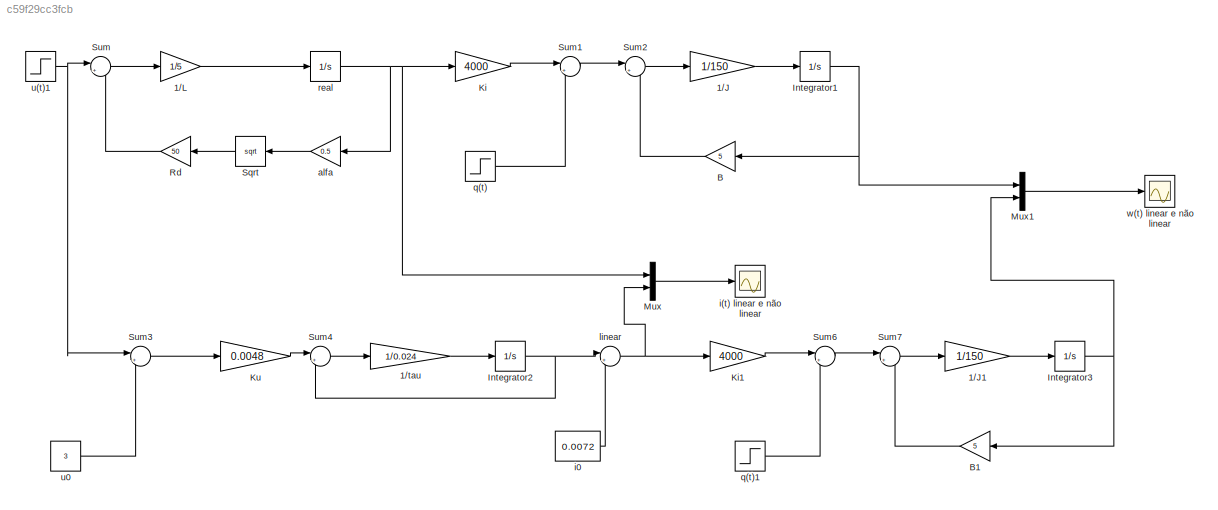
MODEL slx_c59f29cc3fcb
KIND model
CONFIG AbsTol = auto
CONFIG EnableMultiTasking = on
CONFIG FixedStep = auto
CONFIG MaxStep = auto
CONFIG MinStep = auto
CONFIG RelTol = 1e-3
CONFIG SampleTimeConstraint = Unconstrained
CONFIG SolverName = ode45
CONFIG StartTime = 0.0
CONFIG StopTime = 150
BLOCK [Gain] 1//J
  Gain = 1/150
BLOCK [Gain] 1//J1
  Gain = 1/150
BLOCK [Gain] 1//L
  Gain = 1/5
BLOCK [Gain] 1//tau
  Gain = 1/0.024
BLOCK [Gain] B
  Gain = 5
BLOCK [Gain] B1
  Gain = 5
BLOCK [Integrator] Integrator1
  Ports = [1, 1]
BLOCK [Integrator] Integrator2
  Ports = [1, 1]
BLOCK [Integrator] Integrator3
  Ports = [1, 1]
BLOCK [Gain] Ki
  Gain = 4000
BLOCK [Gain] Ki1
  Gain = 4000
BLOCK [Gain] Ku
  Gain = 0.0048
BLOCK [Mux] Mux
  DisplayOption = bar
  Inputs = 2
  Ports = [2, 1]
BLOCK [Mux] Mux1
  DisplayOption = bar
  Inputs = 2
  Ports = [2, 1]
BLOCK [Gain] Rd
  Gain = 50
BLOCK [Sqrt] Sqrt
BLOCK [Sum] Sum
  Inputs = |+-
  Ports = [2, 1]
BLOCK [Sum] Sum1
  Inputs = |++
  Ports = [2, 1]
BLOCK [Sum] Sum2
  Inputs = |+-
  Ports = [2, 1]
BLOCK [Sum] Sum3
  Inputs = |+-
  Ports = [2, 1]
BLOCK [Sum] Sum4
  Inputs = |+-
  Ports = [2, 1]
BLOCK [Sum] Sum6
  Inputs = |++
  Ports = [2, 1]
BLOCK [Sum] Sum7
  Inputs = |+-
  Ports = [2, 1]
BLOCK [Gain] alfa
  Gain = 0.5
BLOCK [Scope] i(t) linear e não linear
  Floating = off
  NumInputPorts = 1
  Ports = [1]
  ScopeSpecificationString = Simulink.scopes.TimeScopeBlockCfg('CurrentConfiguration', extmgr.ConfigurationSet(extmgr.Configuration('Core','General UI',true,'FigureColor',[1 1 1]),extmgr.Configuration('Core','Source UI',true),extmgr.Configuration('Sources','WiredSimulink',true,'DataLoggingVariableName','ScopeData2','DataLoggingSaveFormat','StructureWithTime','DataLoggingLimitDataPoints',true,'DataLoggingDecimation','1','DataL...<+3212ch>
BLOCK [Constant] i0
  Value = 0.0072
BLOCK [Sum] linear
  Inputs = |++
  Ports = [2, 1]
BLOCK [Step] q(t)
  After = 0
  SampleTime = 0
  Time = 50
BLOCK [Step] q(t)1
  SampleTime = 0
  Time = 50
BLOCK [Integrator] real
  Ports = [1, 1]
BLOCK [Step] u(t)1
  After = 4.5
  Before = 3
  SampleTime = 0
  Time = 50
BLOCK [Constant] u0
  Value = 3
BLOCK [Scope] w(t) linear e não linear
  Floating = off
  NumInputPorts = 1
  Ports = [1]
  ScopeSpecificationString = Simulink.scopes.TimeScopeBlockCfg('CurrentConfiguration', extmgr.ConfigurationSet(extmgr.Configuration('Core','General UI',true,'FigureColor',[0.941176470588235 0.941176470588235 0.941176470588235]),extmgr.Configuration('Core','Source UI',true),extmgr.Configuration('Sources','WiredSimulink',true,'DataLoggingVariableName','ScopeData4','DataLoggingSaveFormat','StructureWithTime','DataLoggingLimitDat...<+2875ch>
LINE 1//J1:1 -> Integrator3:1
LINE 1//J:1 -> Integrator1:1
LINE 1//L:1 -> real:1
LINE 1//tau:1 -> Integrator2:1
LINE B1:1 -> Sum7:2
LINE B:1 -> Sum2:2
NET Integrator1:1 -> B:1, Mux1:1
NET Integrator2:1 -> Sum4:2, linear:1
NET Integrator3:1 -> B1:1, Mux1:2
LINE Ki1:1 -> Sum6:1
LINE Ki:1 -> Sum1:1
LINE Ku:1 -> Sum4:1
LINE Mux1:1 -> w(t) linear e não linear:1
LINE Mux:1 -> i(t) linear e não linear:1
LINE Rd:1 -> Sum:2
LINE Sqrt:1 -> Rd:1
LINE Sum1:1 -> Sum2:1
LINE Sum2:1 -> 1//J:1
LINE Sum3:1 -> Ku:1
LINE Sum4:1 -> 1//tau:1
LINE Sum6:1 -> Sum7:1
LINE Sum7:1 -> 1//J1:1
LINE Sum:1 -> 1//L:1
LINE alfa:1 -> Sqrt:1
LINE i0:1 -> linear:2
NET linear:1 -> Ki1:1, Mux:2
LINE q(t)1:1 -> Sum6:2
LINE q(t):1 -> Sum1:2
NET real:1 -> Ki:1, Mux:1, alfa:1
NET u(t)1:1 -> Sum3:1, Sum:1
LINE u0:1 -> Sum3:2
note: NET lines group one-source signal fan-out (src -> all destinations, sorted); 1:1 wires keep LINE
